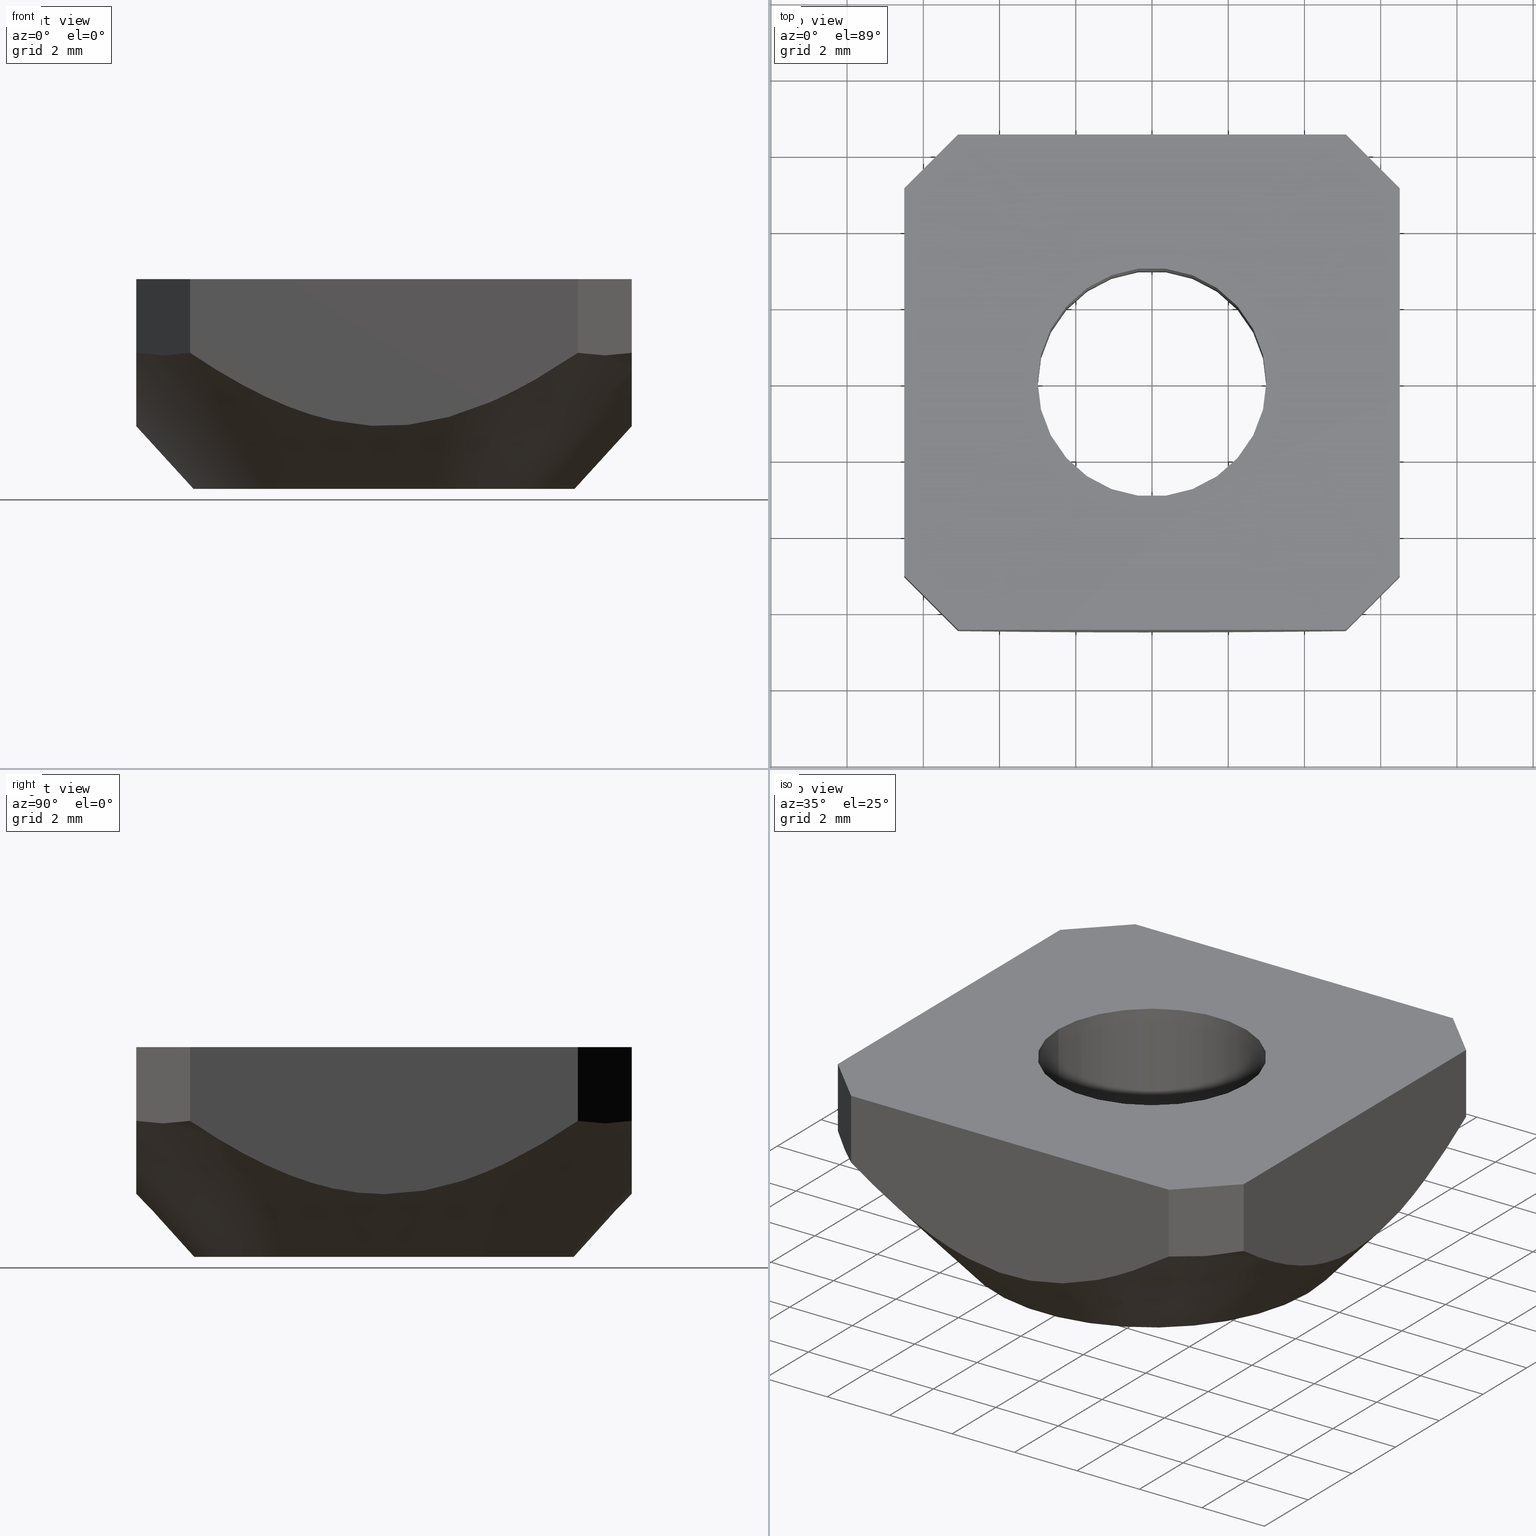
[diagram: canonical four-view strip — front | top / right | iso, engineering-drawing reading convention]
A machine part, canonical four-view strip (front | top / right | iso — engineering-drawing reading convention). The complete STEP part file that produces these views, byte-faithful:
ISO-10303-21;
HEADER;
FILE_DESCRIPTION (( 'STEP AP203' ),
    '1' );
FILE_NAME ('dado-M6-3D.STEP',
    '2018-11-12T12:22:18',
    ( '' ),
    ( '' ),
    'SwSTEP 2.0',
    'SolidWorks 2018',
    '' );
FILE_SCHEMA (( 'CONFIG_CONTROL_DESIGN' ));
ENDSEC;

DATA;
#1 = CARTESIAN_POINT ( 'NONE',  ( -6.500000000000000000, 0.4650942893279675916, -3.855463141347040601 ) ) ;
#2 = SHAPE_DEFINITION_REPRESENTATION ( #384, #37 ) ;
#3 = EDGE_CURVE ( 'NONE', #331, #237, #427, .T. ) ;
#4 = VERTEX_POINT ( 'NONE', #401 ) ;
#5 = AXIS2_PLACEMENT_3D ( 'NONE', #297, #517, #71 ) ;
#6 = CALENDAR_DATE ( 2018, 12, 11 ) ;
#7 = CC_DESIGN_SECURITY_CLASSIFICATION ( #376, ( #224 ) ) ;
#8 = DIRECTION ( 'NONE',  ( 1.000000000000000000, 0.0000000000000000000, 0.0000000000000000000 ) ) ;
#9 = FACE_OUTER_BOUND ( 'NONE', #75, .T. ) ;
#10 = EDGE_LOOP ( 'NONE', ( #49, #138, #395, #446 ) ) ;
#11 = CARTESIAN_POINT ( 'NONE',  ( 1.815581894366168791, 6.500000000000003553, -3.598278178908117297 ) ) ;
#12 = DATE_TIME_ROLE ( 'creation_date' ) ;
#13 = CARTESIAN_POINT ( 'NONE',  ( 6.500000000000000888, 2.258115985482339383, -3.449951132496112738 ) ) ;
#14 = CARTESIAN_POINT ( 'NONE',  ( -6.499999999999999112, 5.085786437626910406, 0.0000000000000000000 ) ) ;
#15 = CARTESIAN_POINT ( 'NONE',  ( -0.9208216822838610760, 6.500000000000002665, -3.800336665431251593 ) ) ;
#16 = LINE ( 'NONE', #287, #348 ) ;
#17 = CARTESIAN_POINT ( 'NONE',  ( 6.500000000000002665, 5.085786437626907741, 0.0000000000000000000 ) ) ;
#18 = LINE ( 'NONE', #137, #486 ) ;
#19 = APPROVAL_ROLE ( '' ) ;
#20 = ORIENTED_EDGE ( 'NONE', *, *, #491, .F. ) ;
#21 = CARTESIAN_POINT ( 'NONE',  ( -4.683470219463361509E-16, 1.335708759934739698E-15, -5.500000002871543892 ) ) ;
#22 = ADVANCED_FACE ( 'NONE', ( #152 ), #223, .T. ) ;
#23 = CARTESIAN_POINT ( 'NONE',  ( -2.258066242822474035, -6.500000000000002665, -3.449969955218917583 ) ) ;
#24 = VERTEX_POINT ( 'NONE', #276 ) ;
#25 = VERTEX_POINT ( 'NONE', #448 ) ;
#26 = PLANE ( 'NONE',  #5 ) ;
#27 = VECTOR ( 'NONE', #185, 1000.000000000000114 ) ;
#28 = CARTESIAN_POINT ( 'NONE',  ( 8.326673000000000714E-16, 6.500000000000003553, 0.0000000000000000000 ) ) ;
#29 = VECTOR ( 'NONE', #405, 1000.000000000000000 ) ;
#30 = DIRECTION ( 'NONE',  ( -0.0000000000000000000, -0.0000000000000000000, -1.000000000000000000 ) ) ;
#31 = AXIS2_PLACEMENT_3D ( 'NONE', #271, #52, #362 ) ;
#32 = CARTESIAN_POINT ( 'NONE',  ( 6.500000000000000888, -5.085786437626907741, 0.0000000000000000000 ) ) ;
#33 = ADVANCED_FACE ( 'NONE', ( #65 ), #409, .T. ) ;
#34 = EDGE_CURVE ( 'NONE', #81, #344, #463, .T. ) ;
#35 = VECTOR ( 'NONE', #352, 1000.000000000000000 ) ;
#36 = EDGE_LOOP ( 'NONE', ( #283, #43, #535, #274 ) ) ;
#37 = ADVANCED_BREP_SHAPE_REPRESENTATION ( 'dado-M6-3D', ( #379, #553 ), #521 ) ;
#38 = EDGE_CURVE ( 'NONE', #128, #322, #337, .T. ) ;
#39 = CARTESIAN_POINT ( 'NONE',  ( 6.499999999999999112, -3.107104337365194535, -3.094856044108537763 ) ) ;
#40 = DIRECTION ( 'NONE',  ( 0.0000000000000000000, -1.000000000000000000, -0.0000000000000000000 ) ) ;
#41 = CYLINDRICAL_SURFACE ( 'NONE', #494, 3.000000000000000000 ) ;
#42 = VECTOR ( 'NONE', #452, 1000.000000000000000 ) ;
#43 = ORIENTED_EDGE ( 'NONE', *, *, #420, .F. ) ;
#44 = CARTESIAN_POINT ( 'NONE',  ( 6.500000000000002665, -0.4650942893279644830, -3.855463141347037048 ) ) ;
#45 = CC_DESIGN_DATE_AND_TIME_ASSIGNMENT ( #202, #106, ( #376 ) ) ;
#46 = PERSON_AND_ORGANIZATION ( #365, #182 ) ;
#47 = CALENDAR_DATE ( 2018, 12, 11 ) ;
#48 = EDGE_CURVE ( 'NONE', #24, #237, #219, .T. ) ;
#49 = ORIENTED_EDGE ( 'NONE', *, *, #105, .F. ) ;
#50 = ORIENTED_EDGE ( 'NONE', *, *, #489, .F. ) ;
#51 = CARTESIAN_POINT ( 'NONE',  ( 4.703608218064447399, 6.499999999966565412, -2.191533057788421335 ) ) ;
#52 = DIRECTION ( 'NONE',  ( 0.7071067811865475727, -0.7071067811865475727, 0.0000000000000000000 ) ) ;
#53 = DIRECTION ( 'NONE',  ( 0.0000000000000000000, 0.0000000000000000000, -1.000000000000000000 ) ) ;
#54 = CARTESIAN_POINT ( 'NONE',  ( -4.314592221427059116, 6.500000000000005329, -2.436609088893727293 ) ) ;
#55 = VECTOR ( 'NONE', #495, 1000.000000000000000 ) ;
#56 = LINE ( 'NONE', #155, #193 ) ;
#57 = VERTEX_POINT ( 'NONE', #500 ) ;
#58 = CARTESIAN_POINT ( 'NONE',  ( -5.085786437626905077, -6.500000000000002665, 0.0000000000000000000 ) ) ;
#59 = MECHANICAL_CONTEXT ( 'NONE', #404, 'mechanical' ) ;
#60 = AXIS2_PLACEMENT_3D ( 'NONE', #73, #213, #160 ) ;
#61 = CARTESIAN_POINT ( 'NONE',  ( 6.500000000012471801, -5.085786437677110250, -1.933334202242371402 ) ) ;
#62 = ADVANCED_FACE ( 'NONE', ( #563 ), #233, .T. ) ;
#63 = CALENDAR_DATE ( 2018, 12, 11 ) ;
#64 = CARTESIAN_POINT ( 'NONE',  ( 0.9208216822838624083, -6.500000000000002665, -3.800336665431245819 ) ) ;
#65 = FACE_OUTER_BOUND ( 'NONE', #222, .T. ) ;
#66 = ORIENTED_EDGE ( 'NONE', *, *, #393, .F. ) ;
#67 = ORIENTED_EDGE ( 'NONE', *, *, #460, .T. ) ;
#68 = EDGE_CURVE ( 'NONE', #25, #72, #18, .T. ) ;
#69 = PERSON_AND_ORGANIZATION ( #365, #182 ) ;
#70 = LINE ( 'NONE', #435, #236 ) ;
#71 = DIRECTION ( 'NONE',  ( 0.0000000000000000000, 0.0000000000000000000, -1.000000000000000000 ) ) ;
#72 = VERTEX_POINT ( 'NONE', #133 ) ;
#73 = CARTESIAN_POINT ( 'NONE',  ( -8.673617379884035472E-16, 1.734723475976807094E-15, -1.911934207335162839 ) ) ;
#74 = CARTESIAN_POINT ( 'NONE',  ( -5.085786437626905965, -6.500000000000002665, 0.0000000000000000000 ) ) ;
#75 = EDGE_LOOP ( 'NONE', ( #475, #528 ) ) ;
#76 = EDGE_CURVE ( 'NONE', #103, #342, #502, .T. ) ;
#77 = DIRECTION ( 'NONE',  ( 0.6738935147379919721, 8.216221638422233690E-17, 0.7388284853699643717 ) ) ;
#78 = CARTESIAN_POINT ( 'NONE',  ( 6.500000000000000888, -4.314590728831698918, -2.436610215365368148 ) ) ;
#79 = COORDINATED_UNIVERSAL_TIME_OFFSET ( 1, 0, .AHEAD. ) ;
#80 = ORIENTED_EDGE ( 'NONE', *, *, #519, .F. ) ;
#81 = VERTEX_POINT ( 'NONE', #58 ) ;
#82 = CARTESIAN_POINT ( 'NONE',  ( 6.500000000012471801, -5.085786437677110250, -1.933334202242371402 ) ) ;
#83 = B_SPLINE_CURVE_WITH_KNOTS ( 'NONE', 3,
 ( #430, #339, #471, #111 ),
 .UNSPECIFIED., .F., .F.,
 ( 4, 4 ),
 ( 6.051050471646755322E-14, 0.002000000000007149704 ),
 .UNSPECIFIED. ) ;
#84 = DIRECTION ( 'NONE',  ( -1.000000000000000000, 0.0000000000000000000, 0.0000000000000000000 ) ) ;
#85 = CARTESIAN_POINT ( 'NONE',  ( -3.000000000000000000, 0.0000000000000000000, 0.0000000000000000000 ) ) ;
#86 = AXIS2_PLACEMENT_3D ( 'NONE', #74, #470, #561 ) ;
#87 = ORIENTED_EDGE ( 'NONE', *, *, #260, .F. ) ;
#88 = ORIENTED_EDGE ( 'NONE', *, *, #467, .T. ) ;
#89 = CC_DESIGN_APPROVAL ( #402, ( #376 ) ) ;
#90 = CARTESIAN_POINT ( 'NONE',  ( 5.085786437626906853, 6.500000000000003553, 0.0000000000000000000 ) ) ;
#91 = COORDINATED_UNIVERSAL_TIME_OFFSET ( 1, 0, .AHEAD. ) ;
#92 = CARTESIAN_POINT ( 'NONE',  ( -5.085786437626905965, -6.500000000000002665, 0.0000000000000000000 ) ) ;
#93 = FACE_BOUND ( 'NONE', #558, .T. ) ;
#94 = APPROVAL_STATUS ( 'not_yet_approved' ) ;
#95 = ORIENTED_EDGE ( 'NONE', *, *, #125, .T. ) ;
#96 = CARTESIAN_POINT ( 'NONE',  ( 5.085786437677106697, -6.500000000012474466, -1.933334202242371402 ) ) ;
#97 = CARTESIAN_POINT ( 'NONE',  ( 3.107021229645465343, 6.500000000000003553, -3.094896613372098315 ) ) ;
#98 = CARTESIAN_POINT ( 'NONE',  ( -6.500000000000000888, -5.085786437626906853, 0.0000000000000000000 ) ) ;
#99 = CARTESIAN_POINT ( 'NONE',  ( -6.500000000012470913, -5.085786437677108474, -1.933334202242376954 ) ) ;
#100 = PERSON_AND_ORGANIZATION_ROLE ( 'design_supplier' ) ;
#101 = DATE_AND_TIME ( #6, #562 ) ;
#102 = VERTEX_POINT ( 'NONE', #171 ) ;
#103 = VERTEX_POINT ( 'NONE', #504 ) ;
#104 = CARTESIAN_POINT ( 'NONE',  ( -3.107021229645464011, -6.500000000000003553, -3.094896613372096539 ) ) ;
#105 = EDGE_CURVE ( 'NONE', #81, #305, #433, .T. ) ;
#106 = DATE_TIME_ROLE ( 'classification_date' ) ;
#107 = LOCAL_TIME ( 13, 22, 18.00000000000000000, #492 ) ;
#108 = LINE ( 'NONE', #17, #27 ) ;
#109 = ORIENTED_EDGE ( 'NONE', *, *, #125, .F. ) ;
#110 = CARTESIAN_POINT ( 'NONE',  ( -8.673617379884035472E-16, 1.734723475976807094E-15, -1.911934207335162839 ) ) ;
#111 = CARTESIAN_POINT ( 'NONE',  ( -6.500000000012470025, 5.085786437677112026, -1.933334202242378286 ) ) ;
#112 = ORIENTED_EDGE ( 'NONE', *, *, #432, .T. ) ;
#113 = ORIENTED_EDGE ( 'NONE', *, *, #215, .F. ) ;
#114 = ORIENTED_EDGE ( 'NONE', *, *, #420, .T. ) ;
#115 = CARTESIAN_POINT ( 'NONE',  ( -6.500000000000000000, -4.703607954548214565, -2.191533235839579596 ) ) ;
#116 = ADVANCED_FACE ( 'NONE', ( #370 ), #527, .T. ) ;
#117 = CARTESIAN_POINT ( 'NONE',  ( -6.499999999999999112, 6.591949000000000730E-16, 0.0000000000000000000 ) ) ;
#118 = LINE ( 'NONE', #488, #145 ) ;
#119 = ORIENTED_EDGE ( 'NONE', *, *, #460, .F. ) ;
#120 = ORIENTED_EDGE ( 'NONE', *, *, #34, .F. ) ;
#121 = CARTESIAN_POINT ( 'NONE',  ( 6.500000000000000888, -1.815724347486215251, -3.598234520951646864 ) ) ;
#122 = EDGE_CURVE ( 'NONE', #240, #4, #557, .T. ) ;
#123 = ORIENTED_EDGE ( 'NONE', *, *, #260, .T. ) ;
#124 = CARTESIAN_POINT ( 'NONE',  ( 6.500000000000002665, 4.314560848977908591, -2.436628880351495496 ) ) ;
#125 = EDGE_CURVE ( 'NONE', #194, #72, #83, .T. ) ;
#126 = VECTOR ( 'NONE', #484, 1000.000000000000114 ) ;
#127 = ORIENTED_EDGE ( 'NONE', *, *, #300, .F. ) ;
#128 = VERTEX_POINT ( 'NONE', #32 ) ;
#129 = CARTESIAN_POINT ( 'NONE',  ( -5.085786437626904188, 6.500000000000005329, 0.0000000000000000000 ) ) ;
#130 = CARTESIAN_POINT ( 'NONE',  ( 6.500000000000000888, 6.591949000000000730E-16, 0.0000000000000000000 ) ) ;
#131 = CARTESIAN_POINT ( 'NONE',  ( -4.703623369059489079, 6.500000000000002665, -2.191522821825996559 ) ) ;
#132 = DIRECTION ( 'NONE',  ( 0.0000000000000000000, -0.0000000000000000000, -1.000000000000000000 ) ) ;
#133 = CARTESIAN_POINT ( 'NONE',  ( -6.500000000012470025, 5.085786437677112026, -1.933334202242378286 ) ) ;
#134 =( LENGTH_UNIT ( ) NAMED_UNIT ( * ) SI_UNIT ( .MILLI., .METRE. ) );
#135 = LINE ( 'NONE', #117, #245 ) ;
#136 = DIRECTION ( 'NONE',  ( 0.0000000000000000000, 0.0000000000000000000, -1.000000000000000000 ) ) ;
#137 = CARTESIAN_POINT ( 'NONE',  ( -6.499999999999999112, 5.085786437626910406, 0.0000000000000000000 ) ) ;
#138 = ORIENTED_EDGE ( 'NONE', *, *, #34, .T. ) ;
#139 = PLANE ( 'NONE',  #496 ) ;
#140 = ORIENTED_EDGE ( 'NONE', *, *, #122, .T. ) ;
#141 = CARTESIAN_POINT ( 'NONE',  ( 5.085786437626905965, -6.500000000000003553, 0.0000000000000000000 ) ) ;
#142 = DIRECTION ( 'NONE',  ( -1.000000000000000000, 0.0000000000000000000, 0.0000000000000000000 ) ) ;
#143 = ADVANCED_FACE ( 'NONE', ( #93, #313 ), #341, .T. ) ;
#144 = CARTESIAN_POINT ( 'NONE',  ( -0.4648848418447529274, -6.500000000000003553, -3.855480798021071465 ) ) ;
#145 = VECTOR ( 'NONE', #311, 1000.000000000000114 ) ;
#146 = ORIENTED_EDGE ( 'NONE', *, *, #508, .F. ) ;
#147 = ORIENTED_EDGE ( 'NONE', *, *, #258, .T. ) ;
#148 = EDGE_CURVE ( 'NONE', #315, #358, #172, .T. ) ;
#149 = DIRECTION ( 'NONE',  ( -1.112060755793410790E-16, 1.112060755793410790E-16, 1.000000000000000000 ) ) ;
#150 = PERSON_AND_ORGANIZATION ( #365, #182 ) ;
#151 = CARTESIAN_POINT ( 'NONE',  ( -6.499999999999999112, 1.564844549028617558E-15, -3.855463141347041045 ) ) ;
#152 = FACE_OUTER_BOUND ( 'NONE', #549, .T. ) ;
#153 = ORIENTED_EDGE ( 'NONE', *, *, #258, .F. ) ;
#154 = ADVANCED_FACE ( 'NONE', ( #302 ), #26, .T. ) ;
#155 = CARTESIAN_POINT ( 'NONE',  ( 5.085786437626906853, 6.500000000000003553, 0.0000000000000000000 ) ) ;
#156 = CARTESIAN_POINT ( 'NONE',  ( 3.000000000000000000, 3.673940397442059868E-16, -5.500000000000000000 ) ) ;
#157 = COORDINATED_UNIVERSAL_TIME_OFFSET ( 1, 0, .AHEAD. ) ;
#158 = CC_DESIGN_PERSON_AND_ORGANIZATION_ASSIGNMENT ( #442, #455, ( #224 ) ) ;
#159 = COORDINATED_UNIVERSAL_TIME_OFFSET ( 1, 0, .AHEAD. ) ;
#160 = DIRECTION ( 'NONE',  ( 1.000000000000000000, 0.0000000000000000000, 1.048460935350610842E-16 ) ) ;
#161 = ORIENTED_EDGE ( 'NONE', *, *, #332, .T. ) ;
#162 = EDGE_CURVE ( 'NONE', #4, #194, #399, .T. ) ;
#163 = CARTESIAN_POINT ( 'NONE',  ( 8.272713925181706784, 1.734723475976807094E-15, -1.911934207335161950 ) ) ;
#164 = CARTESIAN_POINT ( 'NONE',  ( 6.500000000000000888, 2.268358371881253341E-15, -3.855463141347035716 ) ) ;
#165 = CARTESIAN_POINT ( 'NONE',  ( -6.499999999999999112, 1.564844549028617558E-15, -3.855463141347041045 ) ) ;
#166 = APPROVAL ( #94, 'NON SPECIFICATO' ) ;
#167 = ORIENTED_EDGE ( 'NONE', *, *, #38, .T. ) ;
#168 = CARTESIAN_POINT ( 'NONE',  ( 5.085786437626905965, -6.500000000000003553, 0.0000000000000000000 ) ) ;
#169 = CARTESIAN_POINT ( 'NONE',  ( 5.000000003148240779, 1.335708759934739698E-15, -5.500000002871543003 ) ) ;
#170 = AXIS2_PLACEMENT_3D ( 'NONE', #383, #251, #207 ) ;
#171 = CARTESIAN_POINT ( 'NONE',  ( 6.500000000012471801, 5.085786437614437716, -1.933334202284715309 ) ) ;
#172 = B_SPLINE_CURVE_WITH_KNOTS ( 'NONE', 3,
 ( #151, #200, #253, #426, #385, #514, #299, #250, #115, #381 ),
 .UNSPECIFIED., .F., .F.,
 ( 4, 2, 2, 2, 4 ),
 ( 0.005500282472162164836, 0.006875464021343275639, 0.008250645570524385575, 0.009625827119705495510, 0.01100100866888660718 ),
 .UNSPECIFIED. ) ;
#173 = FACE_OUTER_BOUND ( 'NONE', #451, .T. ) ;
#174 = ORIENTED_EDGE ( 'NONE', *, *, #515, .F. ) ;
#175 = ORIENTED_EDGE ( 'NONE', *, *, #215, .T. ) ;
#176 = CARTESIAN_POINT ( 'NONE',  ( 4.314592221427061780, -6.500000000000002665, -2.436609088893720632 ) ) ;
#177 = PRODUCT ( 'dado-M6-3D', 'dado-M6-3D', '', ( #59 ) ) ;
#178 = DIRECTION ( 'NONE',  ( 0.0000000000000000000, 0.0000000000000000000, -1.000000000000000000 ) ) ;
#179 = CC_DESIGN_PERSON_AND_ORGANIZATION_ASSIGNMENT ( #461, #284, ( #177 ) ) ;
#180 = LOCAL_TIME ( 13, 22, 18.00000000000000000, #91 ) ;
#181 = DIRECTION ( 'NONE',  ( -1.000000000000000000, 0.0000000000000000000, 0.0000000000000000000 ) ) ;
#182 = ORGANIZATION ( 'NON SPECIFICATO', 'NON SPECIFICATO', '' ) ;
#183 = CIRCLE ( 'NONE', #170, 5.000000003148241667 ) ;
#184 = ORIENTED_EDGE ( 'NONE', *, *, #567, .F. ) ;
#185 = DIRECTION ( 'NONE',  ( -0.7071067811865474617, 0.7071067811865474617, 0.0000000000000000000 ) ) ;
#186 = PLANE ( 'NONE',  #317 ) ;
#187 = APPLICATION_PROTOCOL_DEFINITION ( 'international standard', 'config_control_design', 1994, #404 ) ;
#188 = CARTESIAN_POINT ( 'NONE',  ( 6.500000000000000888, 2.268358371881253341E-15, -3.855463141347035716 ) ) ;
#189 = APPROVAL_ROLE ( '' ) ;
#190 = PERSON_AND_ORGANIZATION ( #365, #182 ) ;
#191 = CARTESIAN_POINT ( 'NONE',  ( 3.107124692420668577, -6.500000000000003553, -3.094845548749633579 ) ) ;
#192 = ADVANCED_FACE ( 'NONE', ( #173 ), #378, .T. ) ;
#193 = VECTOR ( 'NONE', #476, 1000.000000000000000 ) ;
#194 = VERTEX_POINT ( 'NONE', #298 ) ;
#195 = CARTESIAN_POINT ( 'NONE',  ( 6.500000000000000888, -5.085786437626907741, 0.0000000000000000000 ) ) ;
#196 = EDGE_CURVE ( 'NONE', #342, #103, #183, .T. ) ;
#197 = CARTESIAN_POINT ( 'NONE',  ( -5.085786437626904188, 6.500000000000005329, 0.0000000000000000000 ) ) ;
#198 = VERTEX_POINT ( 'NONE', #472 ) ;
#199 = CC_DESIGN_DATE_AND_TIME_ASSIGNMENT ( #211, #12, ( #291 ) ) ;
#200 = CARTESIAN_POINT ( 'NONE',  ( -6.500000000000000000, -0.4651318099098080694, -3.855463141347041045 ) ) ;
#201 = PLANE ( 'NONE',  #86 ) ;
#202 = DATE_AND_TIME ( #63, #107 ) ;
#203 = ORIENTED_EDGE ( 'NONE', *, *, #3, .T. ) ;
#204 = AXIS2_PLACEMENT_3D ( 'NONE', #355, #440, #84 ) ;
#205 = EDGE_LOOP ( 'NONE', ( #161, #167, #88, #140, #264, #474, #67, #464 ) ) ;
#206 = EDGE_LOOP ( 'NONE', ( #292, #363 ) ) ;
#207 = DIRECTION ( 'NONE',  ( 1.000000000000000000, 0.0000000000000000000, 1.734723474884541410E-16 ) ) ;
#208 = CARTESIAN_POINT ( 'NONE',  ( -6.499999999999996447, 3.516297865762422870, -2.888213576328815702 ) ) ;
#209 = CARTESIAN_POINT ( 'NONE',  ( 6.499999999966564523, -4.703623633186840181, -2.191522643361967226 ) ) ;
#210 = ADVANCED_FACE ( 'NONE', ( #473 ), #201, .T. ) ;
#211 = DATE_AND_TIME ( #301, #295 ) ;
#212 = VECTOR ( 'NONE', #77, 1000.000000000000114 ) ;
#213 = DIRECTION ( 'NONE',  ( -1.112060755793410790E-16, 1.112060755793410790E-16, 1.000000000000000000 ) ) ;
#214 = VECTOR ( 'NONE', #254, 1000.000000000000000 ) ;
#215 = EDGE_CURVE ( 'NONE', #240, #198, #56, .T. ) ;
#216 = ORIENTED_EDGE ( 'NONE', *, *, #162, .F. ) ;
#217 = CARTESIAN_POINT ( 'NONE',  ( -6.499999999966561859, 4.703623633186841069, -2.191522643361974332 ) ) ;
#218 = CARTESIAN_POINT ( 'NONE',  ( 6.500000000000000888, 0.9206392684270442439, -3.800366371404682475 ) ) ;
#219 = CIRCLE ( 'NONE', #428, 3.000000000000000000 ) ;
#220 = ORIENTED_EDGE ( 'NONE', *, *, #466, .F. ) ;
#221 = CARTESIAN_POINT ( 'NONE',  ( 0.0000000000000000000, 0.0000000000000000000, 0.0000000000000000000 ) ) ;
#222 = EDGE_LOOP ( 'NONE', ( #66, #572, #95, #481 ) ) ;
#223 = PLANE ( 'NONE',  #31 ) ;
#224 = PRODUCT_DEFINITION_FORMATION_WITH_SPECIFIED_SOURCE ( 'TUTTO', '', #177, .NOT_KNOWN. ) ;
#225 = DIRECTION ( 'NONE',  ( 0.0000000000000000000, 1.000000000000000000, 0.0000000000000000000 ) ) ;
#226 = LINE ( 'NONE', #195, #55 ) ;
#227 = DIRECTION ( 'NONE',  ( -0.7071067811865474617, -0.7071067811865474617, 0.0000000000000000000 ) ) ;
#228 = CARTESIAN_POINT ( 'NONE',  ( 2.258066242822476255, 6.500000000000003553, -3.449969955218920692 ) ) ;
#229 = CLOSED_SHELL ( 'NONE', ( #335, #116, #143, #560, #154, #22, #210, #192, #62, #33, #551, #374, #419, #241 ) ) ;
#230 = CARTESIAN_POINT ( 'NONE',  ( -0.4653350873336496996, 6.500000000000003553, -3.855445476124739201 ) ) ;
#231 = CARTESIAN_POINT ( 'NONE',  ( 4.314559355035864741, 6.500000000000004441, -2.436630007698926459 ) ) ;
#232 = PLANE ( 'NONE',  #347 ) ;
#233 = PLANE ( 'NONE',  #308 ) ;
#234 = PERSON_AND_ORGANIZATION_ROLE ( 'creator' ) ;
#235 = FACE_BOUND ( 'NONE', #206, .T. ) ;
#236 = VECTOR ( 'NONE', #483, 1000.000000000000000 ) ;
#237 = VERTEX_POINT ( 'NONE', #156 ) ;
#238 = DESIGN_CONTEXT ( 'detailed design', #372, 'design' ) ;
#239 = CARTESIAN_POINT ( 'NONE',  ( 6.500000000000000000, 4.703607954553438830, -2.191533235836048643 ) ) ;
#240 = VERTEX_POINT ( 'NONE', #559 ) ;
#241 = ADVANCED_FACE ( 'NONE', ( #533 ), #485, .T. ) ;
#242 = AXIS2_PLACEMENT_3D ( 'NONE', #21, #541, #547 ) ;
#243 = CARTESIAN_POINT ( 'NONE',  ( 2.258238322193993675, -6.500000000000004441, -3.449905772485376332 ) ) ;
#244 = CARTESIAN_POINT ( 'NONE',  ( -1.815581894366166571, -6.500000000000001776, -3.598278178908113745 ) ) ;
#245 = VECTOR ( 'NONE', #40, 1000.000000000000000 ) ;
#246 = EDGE_LOOP ( 'NONE', ( #252, #424, #469, #400, #50, #146, #220, #396 ) ) ;
#247 = CC_DESIGN_APPROVAL ( #255, ( #224 ) ) ;
#248 = AXIS2_PLACEMENT_3D ( 'NONE', #129, #269, #227 ) ;
#249 = DIRECTION ( 'NONE',  ( 0.7071067811865474617, -0.7071067811865474617, 0.0000000000000000000 ) ) ;
#250 = CARTESIAN_POINT ( 'NONE',  ( -6.499999999999999112, -4.314560849031610523, -2.436628880319039236 ) ) ;
#251 = DIRECTION ( 'NONE',  ( -1.112060755793410790E-16, 1.112060755793410790E-16, 1.000000000000000000 ) ) ;
#252 = ORIENTED_EDGE ( 'NONE', *, *, #279, .F. ) ;
#253 = CARTESIAN_POINT ( 'NONE',  ( -6.499999999999999112, -0.9206392684394899550, -3.800366371403174792 ) ) ;
#254 = DIRECTION ( 'NONE',  ( 1.000000000000000000, 0.0000000000000000000, -0.0000000000000000000 ) ) ;
#255 = APPROVAL ( #544, 'NON SPECIFICATO' ) ;
#256 = CARTESIAN_POINT ( 'NONE',  ( -6.499999999999999112, 2.258188589613317809, -3.449924592231263798 ) ) ;
#257 = LINE ( 'NONE', #168, #35 ) ;
#258 = EDGE_CURVE ( 'NONE', #102, #322, #70, .T. ) ;
#259 = CARTESIAN_POINT ( 'NONE',  ( 6.500000000000000000, -2.258188589613314257, -3.449924592231258913 ) ) ;
#260 = EDGE_CURVE ( 'NONE', #72, #315, #456, .T. ) ;
#261 = DIRECTION ( 'NONE',  ( -1.000000000000000000, 0.0000000000000000000, 0.0000000000000000000 ) ) ;
#262 = FACE_OUTER_BOUND ( 'NONE', #304, .T. ) ;
#263 = CARTESIAN_POINT ( 'NONE',  ( 0.0000000000000000000, 0.0000000000000000000, -5.500000000000000000 ) ) ;
#264 = ORIENTED_EDGE ( 'NONE', *, *, #393, .T. ) ;
#265 = B_SPLINE_CURVE_WITH_KNOTS ( 'NONE', 3,
 ( #325, #51, #231, #498, #97, #228, #11, #497, #536, #230, #15, #327, #411, #406, #320, #54, #131, #289 ),
 .UNSPECIFIED., .F., .F.,
 ( 4, 2, 2, 2, 2, 2, 2, 2, 4 ),
 ( 8.321467144627602380E-14, 0.001375126083683638313, 0.002750252167284061942, 0.004125378250884485787, 0.005500504334484909198, 0.006875630418085332610, 0.008250756501685756888, 0.009625882585286179433, 0.01100100866888660371 ),
 .UNSPECIFIED. ) ;
#266 = CARTESIAN_POINT ( 'NONE',  ( 6.500000000000000888, 0.4651318099034550402, -3.855463141347036604 ) ) ;
#267 = DIRECTION ( 'NONE',  ( -0.7071067811865474617, 0.7071067811865474617, 0.0000000000000000000 ) ) ;
#268 = EDGE_CURVE ( 'NONE', #342, #314, #380, .T. ) ;
#269 = DIRECTION ( 'NONE',  ( -0.7071067811865475727, 0.7071067811865475727, 0.0000000000000000000 ) ) ;
#270 = B_SPLINE_CURVE_WITH_KNOTS ( 'NONE', 3,
 ( #462, #373, #507, #334, #104, #23, #244, #422, #144, #375, #64, #509, #243, #191, #550, #176, #540, #275 ),
 .UNSPECIFIED., .F., .F.,
 ( 4, 2, 2, 2, 2, 2, 2, 2, 4 ),
 ( 8.321574170978936394E-14, 0.001375126083683639398, 0.002750252167284061508, 0.004125378250884484052, 0.005500504334484906596, 0.006875630418085329140, 0.008250756501685751684, 0.009625882585286174228, 0.01100100866888659851 ),
 .UNSPECIFIED. ) ;
#271 = CARTESIAN_POINT ( 'NONE',  ( 5.085786437626905965, -6.500000000000003553, 0.0000000000000000000 ) ) ;
#272 = CYLINDRICAL_SURFACE ( 'NONE', #204, 3.000000000000000000 ) ;
#273 = ORIENTED_EDGE ( 'NONE', *, *, #466, .T. ) ;
#274 = ORIENTED_EDGE ( 'NONE', *, *, #293, .F. ) ;
#275 = CARTESIAN_POINT ( 'NONE',  ( 5.085786437677106697, -6.500000000012474466, -1.933334202242371402 ) ) ;
#276 = CARTESIAN_POINT ( 'NONE',  ( -3.000000000000000000, 0.0000000000000000000, -5.500000000000000000 ) ) ;
#277 = CC_DESIGN_PERSON_AND_ORGANIZATION_ASSIGNMENT ( #190, #423, ( #376 ) ) ;
#278 =( NAMED_UNIT ( * ) SI_UNIT ( $, .STERADIAN. ) SOLID_ANGLE_UNIT ( ) );
#279 = EDGE_CURVE ( 'NONE', #103, #315, #356, .T. ) ;
#280 =( NAMED_UNIT ( * ) PLANE_ANGLE_UNIT ( ) SI_UNIT ( $, .RADIAN. ) );
#281 = B_SPLINE_CURVE_WITH_KNOTS ( 'NONE', 3,
 ( #188, #266, #218, #329, #13, #530, #543, #124, #239, #444 ),
 .UNSPECIFIED., .F., .F.,
 ( 4, 2, 2, 2, 4 ),
 ( 0.005500282472162170040, 0.006875464021324488584, 0.008250645570486806260, 0.009625827119649123936, 0.01100100866881144161 ),
 .UNSPECIFIED. ) ;
#282 = APPROVAL_DATE_TIME ( #407, #166 ) ;
#283 = ORIENTED_EDGE ( 'NONE', *, *, #3, .F. ) ;
#284 = PERSON_AND_ORGANIZATION_ROLE ( 'design_owner' ) ;
#285 = ORIENTED_EDGE ( 'NONE', *, *, #332, .F. ) ;
#286 = EDGE_CURVE ( 'NONE', #102, #198, #443, .T. ) ;
#287 = CARTESIAN_POINT ( 'NONE',  ( -6.500000000000000888, -5.085786437626906853, 0.0000000000000000000 ) ) ;
#288 = DIRECTION ( 'NONE',  ( 0.0000000000000000000, 0.0000000000000000000, 1.000000000000000000 ) ) ;
#289 = CARTESIAN_POINT ( 'NONE',  ( -5.085786437677106697, 6.500000000012475354, -1.933334202242377842 ) ) ;
#290 = DIRECTION ( 'NONE',  ( 0.7071067811865473507, -0.7071067811865477948, 0.0000000000000000000 ) ) ;
#291 = PRODUCT_DEFINITION ( 'NON CONOSCIUTO', '', #224, #238 ) ;
#292 = ORIENTED_EDGE ( 'NONE', *, *, #48, .T. ) ;
#293 = EDGE_CURVE ( 'NONE', #237, #24, #449, .T. ) ;
#294 = EDGE_CURVE ( 'NONE', #482, #358, #388, .T. ) ;
#295 = LOCAL_TIME ( 13, 22, 18.00000000000000000, #157 ) ;
#296 = VECTOR ( 'NONE', #53, 1000.000000000000000 ) ;
#297 = CARTESIAN_POINT ( 'NONE',  ( 6.500000000000000888, -5.085786437626907741, 0.0000000000000000000 ) ) ;
#298 = CARTESIAN_POINT ( 'NONE',  ( -5.085786437677106697, 6.500000000012475354, -1.933334202242377842 ) ) ;
#299 = CARTESIAN_POINT ( 'NONE',  ( -6.500000000000000000, -3.516244482561148299, -2.888242014019203996 ) ) ;
#300 = EDGE_CURVE ( 'NONE', #25, #482, #135, .T. ) ;
#301 = CALENDAR_DATE ( 2018, 12, 11 ) ;
#302 = FACE_OUTER_BOUND ( 'NONE', #412, .T. ) ;
#303 = DIRECTION ( 'NONE',  ( 1.000000000000000000, 0.0000000000000000000, 1.048460935350610842E-16 ) ) ;
#304 = EDGE_LOOP ( 'NONE', ( #566, #153, #364, #113 ) ) ;
#305 = VERTEX_POINT ( 'NONE', #310 ) ;
#306 = CARTESIAN_POINT ( 'NONE',  ( 6.500000000012471801, 5.085786437614437716, -1.933334202284715309 ) ) ;
#307 = CARTESIAN_POINT ( 'NONE',  ( 6.028595479215633546, 5.557190958371792888, -2.021894486489666409 ) ) ;
#308 = AXIS2_PLACEMENT_3D ( 'NONE', #14, #324, #288 ) ;
#309 = ORIENTED_EDGE ( 'NONE', *, *, #489, .T. ) ;
#310 = CARTESIAN_POINT ( 'NONE',  ( 5.085786437626906853, -6.500000000000002665, 0.0000000000000000000 ) ) ;
#311 = DIRECTION ( 'NONE',  ( -0.7071067811865474617, -0.7071067811865474617, 0.0000000000000000000 ) ) ;
#312 = EDGE_CURVE ( 'NONE', #330, #314, #353, .T. ) ;
#313 = FACE_OUTER_BOUND ( 'NONE', #205, .T. ) ;
#314 = VERTEX_POINT ( 'NONE', #349 ) ;
#315 = VERTEX_POINT ( 'NONE', #165 ) ;
#316 = CC_DESIGN_PERSON_AND_ORGANIZATION_ASSIGNMENT ( #46, #100, ( #224 ) ) ;
#317 = AXIS2_PLACEMENT_3D ( 'NONE', #454, #323, #490 ) ;
#318 = CARTESIAN_POINT ( 'NONE',  ( 0.0000000000000000000, 0.0000000000000000000, 0.0000000000000000000 ) ) ;
#319 = B_SPLINE_CURVE_WITH_KNOTS ( 'NONE', 3,
 ( #96, #546, #499, #61 ),
 .UNSPECIFIED., .F., .F.,
 ( 4, 4 ),
 ( 6.051050471646755322E-14, 0.002000000000007151873 ),
 .UNSPECIFIED. ) ;
#320 = CARTESIAN_POINT ( 'NONE',  ( -3.516309706215212660, 6.500000000000002665, -2.888207160138617002 ) ) ;
#321 = FACE_OUTER_BOUND ( 'NONE', #36, .T. ) ;
#322 = VERTEX_POINT ( 'NONE', #354 ) ;
#323 = DIRECTION ( 'NONE',  ( 0.0000000000000000000, 0.0000000000000000000, 1.000000000000000000 ) ) ;
#324 = DIRECTION ( 'NONE',  ( -1.000000000000000000, 0.0000000000000000000, 0.0000000000000000000 ) ) ;
#325 = CARTESIAN_POINT ( 'NONE',  ( 5.085786437677108474, 6.500000000012474466, -1.933334202242375177 ) ) ;
#326 = CARTESIAN_POINT ( 'NONE',  ( 6.500000000000002665, 5.085786437626907741, 0.0000000000000000000 ) ) ;
#327 = CARTESIAN_POINT ( 'NONE',  ( -1.815743295979880489, 6.500000000000003553, -3.598228176136374135 ) ) ;
#328 = APPROVAL_DATE_TIME ( #101, #255 ) ;
#329 = CARTESIAN_POINT ( 'NONE',  ( 6.500000000000000888, 1.815600839890428864, -3.598271834400735170 ) ) ;
#330 = VERTEX_POINT ( 'NONE', #82 ) ;
#331 = VERTEX_POINT ( 'NONE', #394 ) ;
#332 = EDGE_CURVE ( 'NONE', #305, #128, #257, .T. ) ;
#333 = ORIENTED_EDGE ( 'NONE', *, *, #122, .F. ) ;
#334 = CARTESIAN_POINT ( 'NONE',  ( -3.516232638360159868, -6.500000000000004441, -2.888248432145468669 ) ) ;
#335 = ADVANCED_FACE ( 'NONE', ( #425 ), #272, .F. ) ;
#336 = APPROVAL_PERSON_ORGANIZATION ( #524, #255, #19 ) ;
#337 = LINE ( 'NONE', #130, #42 ) ;
#338 = ORIENTED_EDGE ( 'NONE', *, *, #196, .T. ) ;
#339 = CARTESIAN_POINT ( 'NONE',  ( -5.557190958361342581, 6.028595479226082077, -2.021894486487707532 ) ) ;
#340 = DIRECTION ( 'NONE',  ( -1.000000000000000000, -0.0000000000000000000, 0.0000000000000000000 ) ) ;
#341 = PLANE ( 'NONE',  #366 ) ;
#342 = VERTEX_POINT ( 'NONE', #169 ) ;
#343 = ORIENTED_EDGE ( 'NONE', *, *, #294, .T. ) ;
#344 = VERTEX_POINT ( 'NONE', #503 ) ;
#345 = CARTESIAN_POINT ( 'NONE',  ( 8.326673000000000714E-16, -6.500000000000002665, 0.0000000000000000000 ) ) ;
#346 = CARTESIAN_POINT ( 'NONE',  ( -6.500000000012470025, 5.085786437677112026, -1.933334202242378286 ) ) ;
#347 = AXIS2_PLACEMENT_3D ( 'NONE', #326, #457, #267 ) ;
#348 = VECTOR ( 'NONE', #290, 1000.000000000000000 ) ;
#349 = CARTESIAN_POINT ( 'NONE',  ( 6.500000000000000888, 2.268358371881253341E-15, -3.855463141347035716 ) ) ;
#350 = VECTOR ( 'NONE', #30, 1000.000000000000000 ) ;
#351 = ORIENTED_EDGE ( 'NONE', *, *, #68, .T. ) ;
#352 = DIRECTION ( 'NONE',  ( 0.7071067811865473507, 0.7071067811865477948, 0.0000000000000000000 ) ) ;
#353 = B_SPLINE_CURVE_WITH_KNOTS ( 'NONE', 3,
 ( #480, #209, #78, #391, #39, #259, #121, #436, #44, #164 ),
 .UNSPECIFIED., .F., .F.,
 ( 4, 2, 2, 2, 4 ),
 ( 8.321661056377371081E-14, 0.001375070618102954174, 0.002750141236122692796, 0.004125211854142431418, 0.005500282472162170040 ),
 .UNSPECIFIED. ) ;
#354 = CARTESIAN_POINT ( 'NONE',  ( 6.500000000000000888, 5.085786437626908629, 0.0000000000000000000 ) ) ;
#355 = CARTESIAN_POINT ( 'NONE',  ( 0.0000000000000000000, 0.0000000000000000000, 0.0000000000000000000 ) ) ;
#356 = LINE ( 'NONE', #390, #126 ) ;
#357 = EDGE_LOOP ( 'NONE', ( #20, #203, #538, #80 ) ) ;
#358 = VERTEX_POINT ( 'NONE', #441 ) ;
#359 = EDGE_LOOP ( 'NONE', ( #333, #175, #552, #216 ) ) ;
#360 = PERSON_AND_ORGANIZATION ( #365, #182 ) ;
#361 = LINE ( 'NONE', #141, #493 ) ;
#362 = DIRECTION ( 'NONE',  ( 0.7071067811865474617, 0.7071067811865474617, 0.0000000000000000000 ) ) ;
#363 = ORIENTED_EDGE ( 'NONE', *, *, #293, .T. ) ;
#364 = ORIENTED_EDGE ( 'NONE', *, *, #286, .T. ) ;
#365 = PERSON ( 'NON SPECIFICATO', 'NON SPECIFICATO', 'NON SPECIFICATO', ('NON SPECIFICATO'), ('NON SPECIFICATO'), ('NON SPECIFICATO') ) ;
#366 = AXIS2_PLACEMENT_3D ( 'NONE', #516, #434, #431 ) ;
#367 = DIRECTION ( 'NONE',  ( 0.0000000000000000000, 0.0000000000000000000, -1.000000000000000000 ) ) ;
#368 = CARTESIAN_POINT ( 'NONE',  ( 0.0000000000000000000, 0.0000000000000000000, -5.500000000000000000 ) ) ;
#369 = FACE_OUTER_BOUND ( 'NONE', #359, .T. ) ;
#370 = FACE_OUTER_BOUND ( 'NONE', #439, .T. ) ;
#371 = ORIENTED_EDGE ( 'NONE', *, *, #38, .F. ) ;
#372 = APPLICATION_CONTEXT ( 'configuration controlled 3d designs of mechanical parts and assemblies' ) ;
#373 = CARTESIAN_POINT ( 'NONE',  ( -4.703608218064449176, -6.499999999966565412, -2.191533057788421779 ) ) ;
#374 = ADVANCED_FACE ( 'NONE', ( #262 ), #232, .T. ) ;
#375 = CARTESIAN_POINT ( 'NONE',  ( 0.4653350873336495885, -6.500000000000003553, -3.855445476124735649 ) ) ;
#376 = SECURITY_CLASSIFICATION ( '', '', #418 ) ;
#377 = VECTOR ( 'NONE', #573, 1000.000000000000000 ) ;
#378 = PLANE ( 'NONE',  #545 ) ;
#379 = MANIFOLD_SOLID_BREP ( 'Importato1', #229 ) ;
#380 = LINE ( 'NONE', #163, #212 ) ;
#381 = CARTESIAN_POINT ( 'NONE',  ( -6.500000000012470913, -5.085786437677108474, -1.933334202242376954 ) ) ;
#382 = VERTEX_POINT ( 'NONE', #85 ) ;
#383 = CARTESIAN_POINT ( 'NONE',  ( -4.683470219463361509E-16, 1.335708759934739698E-15, -5.500000002871543892 ) ) ;
#384 = PRODUCT_DEFINITION_SHAPE ( 'NONE', 'NONE',  #291 ) ;
#385 = CARTESIAN_POINT ( 'NONE',  ( -6.500000000000000000, -2.258115985512184398, -3.449951132485600258 ) ) ;
#386 = AXIS2_PLACEMENT_3D ( 'NONE', #263, #522, #261 ) ;
#387 = APPROVAL_DATE_TIME ( #555, #402 ) ;
#388 = LINE ( 'NONE', #392, #377 ) ;
#389 = ORIENTED_EDGE ( 'NONE', *, *, #312, .T. ) ;
#390 = CARTESIAN_POINT ( 'NONE',  ( -8.272713925181710337, 2.747838738850358616E-15, -1.911934207335163727 ) ) ;
#391 = CARTESIAN_POINT ( 'NONE',  ( 6.499999999999999112, -3.516297865762419761, -2.888213576328807708 ) ) ;
#392 = CARTESIAN_POINT ( 'NONE',  ( -6.500000000000000888, -5.085786437626906853, 0.0000000000000000000 ) ) ;
#393 = EDGE_CURVE ( 'NONE', #4, #25, #118, .T. ) ;
#394 = CARTESIAN_POINT ( 'NONE',  ( 3.000000000000000000, 3.673940397442059868E-16, 0.0000000000000000000 ) ) ;
#395 = ORIENTED_EDGE ( 'NONE', *, *, #508, .T. ) ;
#396 = ORIENTED_EDGE ( 'NONE', *, *, #148, .F. ) ;
#397 = CARTESIAN_POINT ( 'NONE',  ( -3.000000000000000000, 0.0000000000000000000, 0.0000000000000000000 ) ) ;
#398 = DIRECTION ( 'NONE',  ( -1.000000000000000000, 0.0000000000000000000, 0.0000000000000000000 ) ) ;
#399 = LINE ( 'NONE', #197, #350 ) ;
#400 = ORIENTED_EDGE ( 'NONE', *, *, #312, .F. ) ;
#401 = CARTESIAN_POINT ( 'NONE',  ( -5.085786437626904188, 6.500000000000005329, 0.0000000000000000000 ) ) ;
#402 = APPROVAL ( #468, 'NON SPECIFICATO' ) ;
#403 = EDGE_CURVE ( 'NONE', #305, #57, #361, .T. ) ;
#404 = APPLICATION_CONTEXT ( 'configuration controlled 3d designs of mechanical parts and assemblies' ) ;
#405 = DIRECTION ( 'NONE',  ( 0.0000000000000000000, -0.0000000000000000000, -1.000000000000000000 ) ) ;
#406 = CARTESIAN_POINT ( 'NONE',  ( -3.107124692420668133, 6.500000000000003553, -3.094845548749639796 ) ) ;
#407 = DATE_AND_TIME ( #47, #513 ) ;
#408 = CARTESIAN_POINT ( 'NONE',  ( -5.085786437677105809, -6.500000000012473578, -1.933334202242374511 ) ) ;
#409 = PLANE ( 'NONE',  #248 ) ;
#410 = VECTOR ( 'NONE', #340, 1000.000000000000000 ) ;
#411 = CARTESIAN_POINT ( 'NONE',  ( -2.258238322193991898, 6.500000000000002665, -3.449905772485382105 ) ) ;
#412 = EDGE_LOOP ( 'NONE', ( #371, #445, #389, #112, #147 ) ) ;
#413 = CARTESIAN_POINT ( 'NONE',  ( 0.0000000000000000000, 0.0000000000000000000, 0.0000000000000000000 ) ) ;
#414 = DIRECTION ( 'NONE',  ( -1.000000000000000000, 0.0000000000000000000, 0.0000000000000000000 ) ) ;
#415 = CC_DESIGN_APPROVAL ( #166, ( #291 ) ) ;
#416 = DIRECTION ( 'NONE',  ( 0.0000000000000000000, 0.0000000000000000000, 1.000000000000000000 ) ) ;
#417 = CARTESIAN_POINT ( 'NONE',  ( -5.557190958382846269, -6.028595479244061472, -2.021894486498652999 ) ) ;
#418 = SECURITY_CLASSIFICATION_LEVEL ( 'unclassified' ) ;
#419 = ADVANCED_FACE ( 'NONE', ( #235, #9 ), #186, .F. ) ;
#420 = EDGE_CURVE ( 'NONE', #382, #331, #556, .T. ) ;
#421 = ORIENTED_EDGE ( 'NONE', *, *, #268, .F. ) ;
#422 = CARTESIAN_POINT ( 'NONE',  ( -0.9205997802961275456, -6.500000000000003553, -3.800373221879205232 ) ) ;
#423 = PERSON_AND_ORGANIZATION_ROLE ( 'classification_officer' ) ;
#424 = ORIENTED_EDGE ( 'NONE', *, *, #76, .T. ) ;
#425 = FACE_OUTER_BOUND ( 'NONE', #357, .T. ) ;
#426 = CARTESIAN_POINT ( 'NONE',  ( -6.499999999999996447, -1.815600839914668585, -3.598271834393967250 ) ) ;
#427 = LINE ( 'NONE', #447, #438 ) ;
#428 = AXIS2_PLACEMENT_3D ( 'NONE', #368, #539, #414 ) ;
#429 = ORIENTED_EDGE ( 'NONE', *, *, #403, .T. ) ;
#430 = CARTESIAN_POINT ( 'NONE',  ( -5.085786437677106697, 6.500000000012475354, -1.933334202242377842 ) ) ;
#431 = DIRECTION ( 'NONE',  ( 1.000000000000000000, 0.0000000000000000000, -0.0000000000000000000 ) ) ;
#432 = EDGE_CURVE ( 'NONE', #314, #102, #281, .T. ) ;
#433 = LINE ( 'NONE', #345, #214 ) ;
#434 = DIRECTION ( 'NONE',  ( 0.0000000000000000000, 0.0000000000000000000, 1.000000000000000000 ) ) ;
#435 = CARTESIAN_POINT ( 'NONE',  ( 6.500000000000000888, 5.085786437626907741, 0.0000000000000000000 ) ) ;
#436 = CARTESIAN_POINT ( 'NONE',  ( 6.500000000000000888, -0.9207822176421274207, -3.800343512463968842 ) ) ;
#437 = LINE ( 'NONE', #397, #296 ) ;
#438 = VECTOR ( 'NONE', #178, 1000.000000000000000 ) ;
#439 = EDGE_LOOP ( 'NONE', ( #338, #518, #87, #109, #184, #565, #450, #421 ) ) ;
#440 = DIRECTION ( 'NONE',  ( 0.0000000000000000000, 0.0000000000000000000, -1.000000000000000000 ) ) ;
#441 = CARTESIAN_POINT ( 'NONE',  ( -6.500000000012470913, -5.085786437677108474, -1.933334202242376954 ) ) ;
#442 = PERSON_AND_ORGANIZATION ( #365, #182 ) ;
#443 = B_SPLINE_CURVE_WITH_KNOTS ( 'NONE', 3,
 ( #306, #307, #529, #526 ),
 .UNSPECIFIED., .F., .F.,
 ( 4, 4 ),
 ( 1.619525838437646925E-14, 0.002000000000007150572 ),
 .UNSPECIFIED. ) ;
#444 = CARTESIAN_POINT ( 'NONE',  ( 6.500000000012471801, 5.085786437614437716, -1.933334202284715309 ) ) ;
#445 = ORIENTED_EDGE ( 'NONE', *, *, #515, .T. ) ;
#446 = ORIENTED_EDGE ( 'NONE', *, *, #403, .F. ) ;
#447 = CARTESIAN_POINT ( 'NONE',  ( 3.000000000000000000, 3.673940397442059868E-16, 0.0000000000000000000 ) ) ;
#448 = CARTESIAN_POINT ( 'NONE',  ( -6.499999999999999112, 5.085786437626910406, 0.0000000000000000000 ) ) ;
#449 = CIRCLE ( 'NONE', #386, 3.000000000000000000 ) ;
#450 = ORIENTED_EDGE ( 'NONE', *, *, #432, .F. ) ;
#451 = EDGE_LOOP ( 'NONE', ( #119, #343, #273, #120 ) ) ;
#452 = DIRECTION ( 'NONE',  ( -0.0000000000000000000, 1.000000000000000000, 0.0000000000000000000 ) ) ;
#453 = CARTESIAN_POINT ( 'NONE',  ( 0.0000000000000000000, 0.0000000000000000000, 0.0000000000000000000 ) ) ;
#454 = CARTESIAN_POINT ( 'NONE',  ( 7.734518000000000462E-16, 5.551114999999999878E-16, -5.500000000000000000 ) ) ;
#455 = PERSON_AND_ORGANIZATION_ROLE ( 'creator' ) ;
#456 = B_SPLINE_CURVE_WITH_KNOTS ( 'NONE', 3,
 ( #346, #217, #478, #208, #523, #256, #520, #568, #1, #570 ),
 .UNSPECIFIED., .F., .F.,
 ( 4, 2, 2, 2, 4 ),
 ( 8.321467144627602380E-14, 0.001375070618102952223, 0.002750141236122689761, 0.004125211854142427081, 0.005500282472162164836 ),
 .UNSPECIFIED. ) ;
#457 = DIRECTION ( 'NONE',  ( 0.7071067811865475727, 0.7071067811865475727, 0.0000000000000000000 ) ) ;
#458 = DIRECTION ( 'NONE',  ( -0.0000000000000000000, -0.0000000000000000000, -1.000000000000000000 ) ) ;
#459 = DIRECTION ( 'NONE',  ( 0.0000000000000000000, -0.0000000000000000000, 1.000000000000000000 ) ) ;
#460 = EDGE_CURVE ( 'NONE', #482, #81, #16, .T. ) ;
#461 = PERSON_AND_ORGANIZATION ( #365, #182 ) ;
#462 = CARTESIAN_POINT ( 'NONE',  ( -5.085786437677105809, -6.500000000012473578, -1.933334202242374511 ) ) ;
#463 = LINE ( 'NONE', #92, #29 ) ;
#464 = ORIENTED_EDGE ( 'NONE', *, *, #105, .T. ) ;
#465 = EDGE_LOOP ( 'NONE', ( #127, #351, #123, #548, #487 ) ) ;
#466 = EDGE_CURVE ( 'NONE', #358, #344, #542, .T. ) ;
#467 = EDGE_CURVE ( 'NONE', #322, #240, #108, .T. ) ;
#468 = APPROVAL_STATUS ( 'not_yet_approved' ) ;
#469 = ORIENTED_EDGE ( 'NONE', *, *, #268, .T. ) ;
#470 = DIRECTION ( 'NONE',  ( 0.0000000000000000000, -1.000000000000000000, 0.0000000000000000000 ) ) ;
#471 = CARTESIAN_POINT ( 'NONE',  ( -6.028595479244057920, 5.557190958382851598, -2.021894486498657439 ) ) ;
#472 = CARTESIAN_POINT ( 'NONE',  ( 5.085786437677108474, 6.500000000012474466, -1.933334202242375177 ) ) ;
#473 = FACE_OUTER_BOUND ( 'NONE', #10, .T. ) ;
#474 = ORIENTED_EDGE ( 'NONE', *, *, #300, .T. ) ;
#475 = ORIENTED_EDGE ( 'NONE', *, *, #196, .F. ) ;
#476 = DIRECTION ( 'NONE',  ( -0.0000000000000000000, 0.0000000000000000000, -1.000000000000000000 ) ) ;
#477 = AXIS2_PLACEMENT_3D ( 'NONE', #221, #367, #398 ) ;
#478 = CARTESIAN_POINT ( 'NONE',  ( -6.500000000000000888, 4.314590728831701583, -2.436610215365375254 ) ) ;
#479 = APPROVAL_PERSON_ORGANIZATION ( #360, #402, #189 ) ;
#480 = CARTESIAN_POINT ( 'NONE',  ( 6.500000000012471801, -5.085786437677110250, -1.933334202242371402 ) ) ;
#481 = ORIENTED_EDGE ( 'NONE', *, *, #68, .F. ) ;
#482 = VERTEX_POINT ( 'NONE', #98 ) ;
#483 = DIRECTION ( 'NONE',  ( -0.0000000000000000000, -0.0000000000000000000, 1.000000000000000000 ) ) ;
#484 = DIRECTION ( 'NONE',  ( -0.6738935147379921942, 1.646903699632265117E-16, 0.7388284853699641497 ) ) ;
#485 = CONICAL_SURFACE ( 'NONE', #60, 8.272713925181706784, 0.7394660560889116940 ) ;
#486 = VECTOR ( 'NONE', #458, 1000.000000000000000 ) ;
#487 = ORIENTED_EDGE ( 'NONE', *, *, #294, .F. ) ;
#488 = CARTESIAN_POINT ( 'NONE',  ( -5.085786437626904188, 6.500000000000005329, 0.0000000000000000000 ) ) ;
#489 = EDGE_CURVE ( 'NONE', #57, #330, #319, .T. ) ;
#490 = DIRECTION ( 'NONE',  ( 1.000000000000000000, 0.0000000000000000000, -0.0000000000000000000 ) ) ;
#491 = EDGE_CURVE ( 'NONE', #331, #382, #571, .T. ) ;
#492 = COORDINATED_UNIVERSAL_TIME_OFFSET ( 1, 0, .AHEAD. ) ;
#493 = VECTOR ( 'NONE', #132, 1000.000000000000000 ) ;
#494 = AXIS2_PLACEMENT_3D ( 'NONE', #318, #501, #181 ) ;
#495 = DIRECTION ( 'NONE',  ( 0.0000000000000000000, 0.0000000000000000000, -1.000000000000000000 ) ) ;
#496 = AXIS2_PLACEMENT_3D ( 'NONE', #90, #225, #459 ) ;
#497 = CARTESIAN_POINT ( 'NONE',  ( 0.9205997802961283227, 6.500000000000003553, -3.800373221879208341 ) ) ;
#498 = CARTESIAN_POINT ( 'NONE',  ( 3.516232638360159868, 6.500000000000003553, -2.888248432145468669 ) ) ;
#499 = CARTESIAN_POINT ( 'NONE',  ( 6.028595479244057032, -5.557190958382852486, -2.021894486498649446 ) ) ;
#500 = CARTESIAN_POINT ( 'NONE',  ( 5.085786437677106697, -6.500000000012474466, -1.933334202242371402 ) ) ;
#501 = DIRECTION ( 'NONE',  ( 0.0000000000000000000, 0.0000000000000000000, -1.000000000000000000 ) ) ;
#502 = CIRCLE ( 'NONE', #242, 5.000000003148241667 ) ;
#503 = CARTESIAN_POINT ( 'NONE',  ( -5.085786437677105809, -6.500000000012473578, -1.933334202242374511 ) ) ;
#504 = CARTESIAN_POINT ( 'NONE',  ( -5.000000003148242556, 2.347935449360633441E-15, -5.500000002871544780 ) ) ;
#505 = PRODUCT_RELATED_PRODUCT_CATEGORY ( 'detail', '', ( #177 ) ) ;
#506 = APPROVAL_ROLE ( '' ) ;
#507 = CARTESIAN_POINT ( 'NONE',  ( -4.314559355035862076, -6.500000000000002665, -2.436630007698925571 ) ) ;
#508 = EDGE_CURVE ( 'NONE', #344, #57, #270, .T. ) ;
#509 = CARTESIAN_POINT ( 'NONE',  ( 1.815743295979880711, -6.500000000000003553, -3.598228176136369694 ) ) ;
#510 = ORIENTED_EDGE ( 'NONE', *, *, #491, .T. ) ;
#511 = UNCERTAINTY_MEASURE_WITH_UNIT (LENGTH_MEASURE( 1.000000000000000082E-05 ), #134, 'distance_accuracy_value', 'NONE');
#512 = DIRECTION ( 'NONE',  ( -0.7071067811865475727, -0.7071067811865475727, 0.0000000000000000000 ) ) ;
#513 = LOCAL_TIME ( 13, 22, 18.00000000000000000, #159 ) ;
#514 = CARTESIAN_POINT ( 'NONE',  ( -6.499999999999999112, -3.107041589988807306, -3.094886115520043113 ) ) ;
#515 = EDGE_CURVE ( 'NONE', #128, #330, #226, .T. ) ;
#516 = CARTESIAN_POINT ( 'NONE',  ( 8.326673000000000714E-16, 6.591949000000000730E-16, 0.0000000000000000000 ) ) ;
#517 = DIRECTION ( 'NONE',  ( 1.000000000000000000, -0.0000000000000000000, 0.0000000000000000000 ) ) ;
#518 = ORIENTED_EDGE ( 'NONE', *, *, #279, .T. ) ;
#519 = EDGE_CURVE ( 'NONE', #382, #24, #437, .T. ) ;
#520 = CARTESIAN_POINT ( 'NONE',  ( -6.500000000000000000, 1.815724347486218138, -3.598234520951652637 ) ) ;
#521 =( GEOMETRIC_REPRESENTATION_CONTEXT ( 3 ) GLOBAL_UNCERTAINTY_ASSIGNED_CONTEXT ( ( #511 ) ) GLOBAL_UNIT_ASSIGNED_CONTEXT ( ( #134, #280, #278 ) ) REPRESENTATION_CONTEXT ( 'NONE', 'WORKASPACE' ) );
#522 = DIRECTION ( 'NONE',  ( -0.0000000000000000000, -0.0000000000000000000, 1.000000000000000000 ) ) ;
#523 = CARTESIAN_POINT ( 'NONE',  ( -6.500000000000000000, 3.107104337365197644, -3.094856044108543980 ) ) ;
#524 = PERSON_AND_ORGANIZATION ( #365, #182 ) ;
#525 = APPROVAL_PERSON_ORGANIZATION ( #69, #166, #506 ) ;
#526 = CARTESIAN_POINT ( 'NONE',  ( 5.085786437677108474, 6.500000000012474466, -1.933334202242375177 ) ) ;
#527 = CONICAL_SURFACE ( 'NONE', #554, 8.272713925181706784, 0.7394660560889116940 ) ;
#528 = ORIENTED_EDGE ( 'NONE', *, *, #76, .F. ) ;
#529 = CARTESIAN_POINT ( 'NONE',  ( 5.557190958393293911, 6.028595479233616494, -2.021894486500614985 ) ) ;
#530 = CARTESIAN_POINT ( 'NONE',  ( 6.500000000000002665, 3.107041589949054661, -3.094886115538637128 ) ) ;
#531 = CARTESIAN_POINT ( 'NONE',  ( -6.028595479226078524, -5.557190958361346134, -2.021894486487704423 ) ) ;
#532 = CC_DESIGN_PERSON_AND_ORGANIZATION_ASSIGNMENT ( #150, #234, ( #291 ) ) ;
#533 = FACE_OUTER_BOUND ( 'NONE', #246, .T. ) ;
#534 = AXIS2_PLACEMENT_3D ( 'NONE', #413, #136, #142 ) ;
#535 = ORIENTED_EDGE ( 'NONE', *, *, #519, .T. ) ;
#536 = CARTESIAN_POINT ( 'NONE',  ( 0.4648848418447535380, 6.500000000000003553, -3.855480798021075461 ) ) ;
#537 = APPLICATION_PROTOCOL_DEFINITION ( 'international standard', 'config_control_design', 1994, #372 ) ;
#538 = ORIENTED_EDGE ( 'NONE', *, *, #48, .F. ) ;
#539 = DIRECTION ( 'NONE',  ( -0.0000000000000000000, -0.0000000000000000000, 1.000000000000000000 ) ) ;
#540 = CARTESIAN_POINT ( 'NONE',  ( 4.703623369059488191, -6.500000000000002665, -2.191522821825990341 ) ) ;
#541 = DIRECTION ( 'NONE',  ( -1.112060755793410790E-16, 1.112060755793410790E-16, 1.000000000000000000 ) ) ;
#542 = B_SPLINE_CURVE_WITH_KNOTS ( 'NONE', 3,
 ( #99, #531, #417, #408 ),
 .UNSPECIFIED., .F., .F.,
 ( 4, 4 ),
 ( 6.051111803072601847E-14, 0.002000000000007151873 ),
 .UNSPECIFIED. ) ;
#543 = CARTESIAN_POINT ( 'NONE',  ( 6.500000000000001776, 3.516244482516675429, -2.888242014042283312 ) ) ;
#544 = APPROVAL_STATUS ( 'not_yet_approved' ) ;
#545 = AXIS2_PLACEMENT_3D ( 'NONE', #564, #512, #249 ) ;
#546 = CARTESIAN_POINT ( 'NONE',  ( 5.557190958361344357, -6.028595479226081189, -2.021894486487701315 ) ) ;
#547 = DIRECTION ( 'NONE',  ( 1.000000000000000000, 0.0000000000000000000, 1.734723474884541410E-16 ) ) ;
#548 = ORIENTED_EDGE ( 'NONE', *, *, #148, .T. ) ;
#549 = EDGE_LOOP ( 'NONE', ( #285, #429, #309, #174 ) ) ;
#550 = CARTESIAN_POINT ( 'NONE',  ( 3.516309706215214437, -6.500000000000002665, -2.888207160138610785 ) ) ;
#551 = ADVANCED_FACE ( 'NONE', ( #369 ), #139, .T. ) ;
#552 = ORIENTED_EDGE ( 'NONE', *, *, #567, .T. ) ;
#553 = AXIS2_PLACEMENT_3D ( 'NONE', #453, #416, #8 ) ;
#554 = AXIS2_PLACEMENT_3D ( 'NONE', #110, #149, #303 ) ;
#555 = DATE_AND_TIME ( #569, #180 ) ;
#556 = CIRCLE ( 'NONE', #477, 3.000000000000000000 ) ;
#557 = LINE ( 'NONE', #28, #410 ) ;
#558 = EDGE_LOOP ( 'NONE', ( #114, #510 ) ) ;
#559 = CARTESIAN_POINT ( 'NONE',  ( 5.085786437626906853, 6.500000000000003553, 0.0000000000000000000 ) ) ;
#560 = ADVANCED_FACE ( 'NONE', ( #321 ), #41, .F. ) ;
#561 = DIRECTION ( 'NONE',  ( 0.0000000000000000000, -0.0000000000000000000, -1.000000000000000000 ) ) ;
#562 = LOCAL_TIME ( 13, 22, 18.00000000000000000, #79 ) ;
#563 = FACE_OUTER_BOUND ( 'NONE', #465, .T. ) ;
#564 = CARTESIAN_POINT ( 'NONE',  ( -6.500000000000000888, -5.085786437626906853, 0.0000000000000000000 ) ) ;
#565 = ORIENTED_EDGE ( 'NONE', *, *, #286, .F. ) ;
#566 = ORIENTED_EDGE ( 'NONE', *, *, #467, .F. ) ;
#567 = EDGE_CURVE ( 'NONE', #198, #194, #265, .T. ) ;
#568 = CARTESIAN_POINT ( 'NONE',  ( -6.499999999999999112, 0.9207822176421314175, -3.800343512463973727 ) ) ;
#569 = CALENDAR_DATE ( 2018, 12, 11 ) ;
#570 = CARTESIAN_POINT ( 'NONE',  ( -6.499999999999999112, 1.564844549028617558E-15, -3.855463141347041045 ) ) ;
#571 = CIRCLE ( 'NONE', #534, 3.000000000000000000 ) ;
#572 = ORIENTED_EDGE ( 'NONE', *, *, #162, .T. ) ;
#573 = DIRECTION ( 'NONE',  ( -0.0000000000000000000, -0.0000000000000000000, -1.000000000000000000 ) ) ;
ENDSEC;
END-ISO-10303-21;
